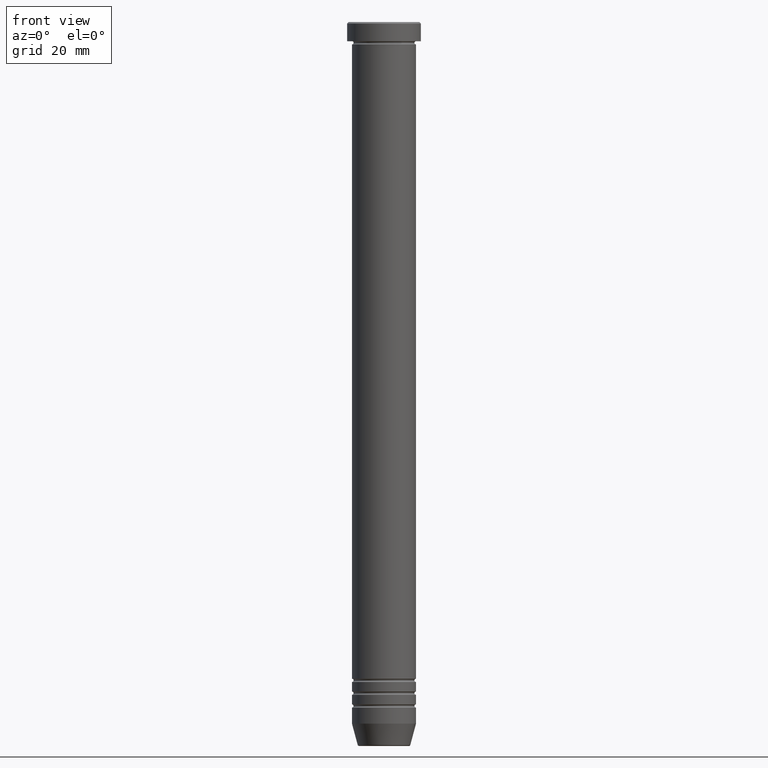
[diagram: clean part render]
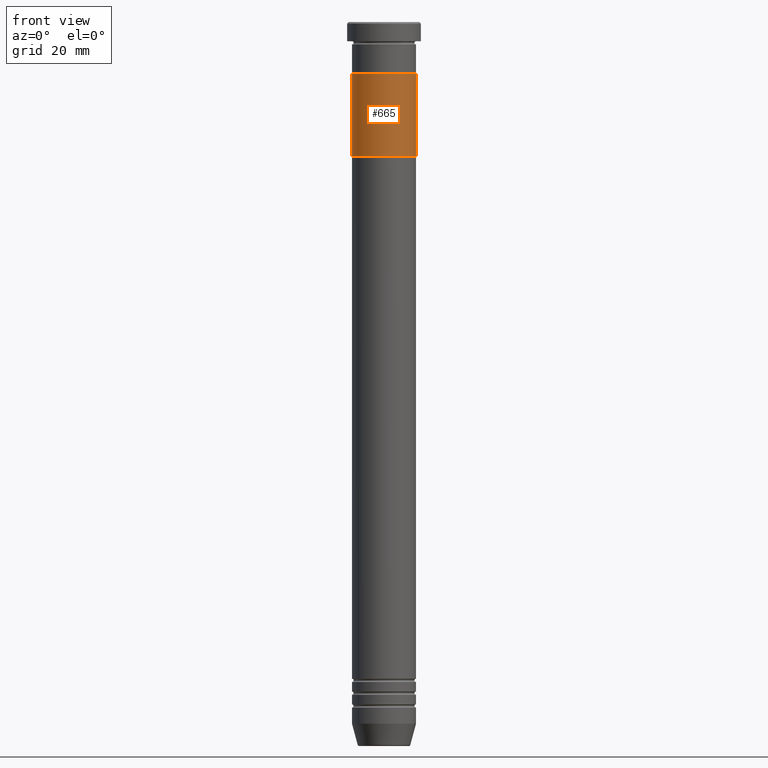
[diagram: same view with one face highlighted and labeled with its STEP entity id]
A machine part, front view. The second image highlights one B-rep face of the part: STEP entity #665.
In plain terms, the highlighted cylindrical surface (edge-blend (fillet) strip) has radius 10 mm, axis along (-0, -0, 1).
Its self-contained STEP definition (entity closure, byte-faithful):
#20 = AXIS2_PLACEMENT_3D ( 'NONE', #598, #345, #1133 ) ;
#29 = VERTEX_POINT ( 'NONE', #500 ) ;
#44 = VERTEX_POINT ( 'NONE', #324 ) ;
#82 = CARTESIAN_POINT ( 'NONE',  ( 10.00000000000000000, 0.000000000000000000, -41.99999999999999289 ) ) ;
#106 = ORIENTED_EDGE ( 'NONE', *, *, #623, .T. ) ;
#121 = EDGE_CURVE ( 'NONE', #29, #318, #775, .T. ) ;
#172 = EDGE_CURVE ( 'NONE', #1033, #44, #955, .T. ) ;
#174 = CARTESIAN_POINT ( 'NONE',  ( -10.00000000000000000, 1.224646799147353059E-15, -41.99999999999999289 ) ) ;
#195 = ORIENTED_EDGE ( 'NONE', *, *, #485, .F. ) ;
#199 = CARTESIAN_POINT ( 'NONE',  ( 10.00000000000000000, 0.000000000000000000, -41.99999999999999289 ) ) ;
#286 = DIRECTION ( 'NONE',  ( 0.000000000000000000, 0.000000000000000000, -1.000000000000000000 ) ) ;
#318 = VERTEX_POINT ( 'NONE', #732 ) ;
#324 = CARTESIAN_POINT ( 'NONE',  ( 10.00000000000000000, 0.000000000000000000, -16.00000000000000000 ) ) ;
#345 = DIRECTION ( 'NONE',  ( 0.000000000000000000, 0.000000000000000000, -1.000000000000000000 ) ) ;
#346 = DIRECTION ( 'NONE',  ( -0.000000000000000000, -0.000000000000000000, 1.000000000000000000 ) ) ;
#387 = DIRECTION ( 'NONE',  ( -0.000000000000000000, -0.000000000000000000, 1.000000000000000000 ) ) ;
#430 = CIRCLE ( 'NONE', #20, 10.00000000000000000 ) ;
#480 = CYLINDRICAL_SURFACE ( 'NONE', #1007, 10.00000000000000000 ) ;
#485 = EDGE_CURVE ( 'NONE', #1033, #29, #430, .T. ) ;
#500 = CARTESIAN_POINT ( 'NONE',  ( -10.00000000000000000, 1.224646799147353059E-15, -41.99999999999999289 ) ) ;
#598 = CARTESIAN_POINT ( 'NONE',  ( 0.000000000000000000, 0.000000000000000000, -41.99999999999999289 ) ) ;
#604 = AXIS2_PLACEMENT_3D ( 'NONE', #816, #286, #724 ) ;
#623 = EDGE_CURVE ( 'NONE', #44, #318, #1101, .T. ) ;
#665 = ADVANCED_FACE ( 'NONE', ( #900 ), #480, .T. ) ;
#670 = VECTOR ( 'NONE', #966, 1000.000000000000000 ) ;
#724 = DIRECTION ( 'NONE',  ( -1.000000000000000000, 0.000000000000000000, 0.000000000000000000 ) ) ;
#732 = CARTESIAN_POINT ( 'NONE',  ( -10.00000000000000000, 1.224646799147353059E-15, -16.00000000000000000 ) ) ;
#748 = ORIENTED_EDGE ( 'NONE', *, *, #172, .T. ) ;
#755 = EDGE_LOOP ( 'NONE', ( #1017, #195, #748, #106 ) ) ;
#775 = LINE ( 'NONE', #174, #1132 ) ;
#816 = CARTESIAN_POINT ( 'NONE',  ( 0.000000000000000000, 0.000000000000000000, -16.00000000000000000 ) ) ;
#900 = FACE_OUTER_BOUND ( 'NONE', #755, .T. ) ;
#955 = LINE ( 'NONE', #82, #670 ) ;
#966 = DIRECTION ( 'NONE',  ( -0.000000000000000000, -0.000000000000000000, 1.000000000000000000 ) ) ;
#1007 = AXIS2_PLACEMENT_3D ( 'NONE', #1083, #387, #1093 ) ;
#1017 = ORIENTED_EDGE ( 'NONE', *, *, #121, .F. ) ;
#1033 = VERTEX_POINT ( 'NONE', #199 ) ;
#1083 = CARTESIAN_POINT ( 'NONE',  ( 0.000000000000000000, 0.000000000000000000, -41.99999999999999289 ) ) ;
#1093 = DIRECTION ( 'NONE',  ( 1.000000000000000000, 0.000000000000000000, 0.000000000000000000 ) ) ;
#1101 = CIRCLE ( 'NONE', #604, 10.00000000000000000 ) ;
#1132 = VECTOR ( 'NONE', #346, 1000.000000000000000 ) ;
#1133 = DIRECTION ( 'NONE',  ( -1.000000000000000000, 0.000000000000000000, 0.000000000000000000 ) ) ;